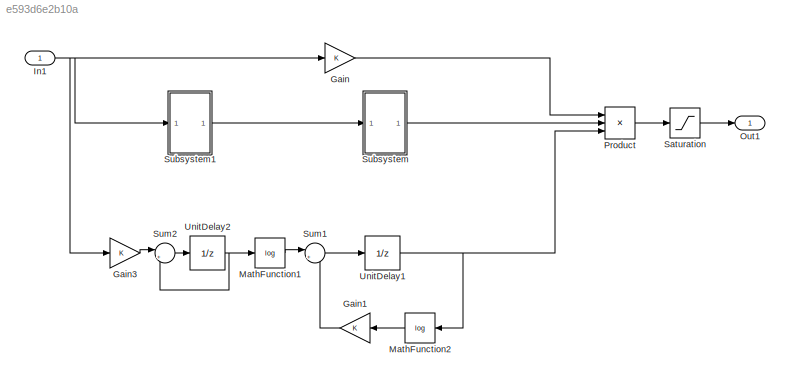
MODEL slx_e593d6e2b10a
KIND model
BLOCK [Gain] Gain
  OutDataTypeStr = Inherit: Inherit via internal rule
  ParamDataTypeStr = Inherit: Inherit via internal rule
  SaturateOnIntegerOverflow = off
BLOCK [Gain] Gain1
  OutDataTypeStr = Inherit: Inherit via internal rule
  ParamDataTypeStr = Inherit: Inherit via internal rule
  SaturateOnIntegerOverflow = off
BLOCK [Gain] Gain3
  OutDataTypeStr = Inherit: Inherit via internal rule
  ParamDataTypeStr = Inherit: Inherit via internal rule
  SaturateOnIntegerOverflow = off
BLOCK [Inport] In1
  IconDisplay = Port number
BLOCK [Math] MathFunction1
  Operator = log
  Ports = [1, 1]
BLOCK [Math] MathFunction2
  Operator = log
  Ports = [1, 1]
BLOCK [Outport] Out1
  IconDisplay = Port number
BLOCK [Product] Product
  InputSameDT = off
  Inputs = 3
  OutDataTypeStr = Inherit: Inherit via internal rule
  Ports = [3, 1]
  RndMeth = Floor
  SaturateOnIntegerOverflow = off
BLOCK [Saturate] Saturation
  InputPortMap = u0
  Ports = [1, 1]
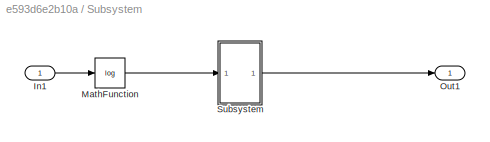
BLOCK [SubSystem] Subsystem
  Ports = [1, 1]
  RequestExecContextInheritance = off
BLOCK [Inport] Subsystem/In1
  IconDisplay = Port number
BLOCK [Math] Subsystem/MathFunction
  Operator = log
  Ports = [1, 1]
BLOCK [Outport] Subsystem/Out1
  IconDisplay = Port number
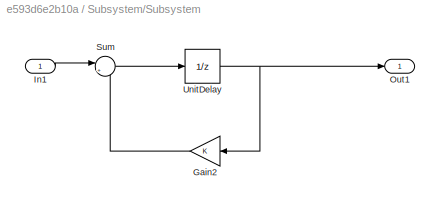
BLOCK [SubSystem] Subsystem/Subsystem
  Ports = [1, 1]
  RequestExecContextInheritance = off
BLOCK [Gain] Subsystem/Subsystem/Gain2
  OutDataTypeStr = Inherit: Inherit via internal rule
  ParamDataTypeStr = Inherit: Inherit via internal rule
  SaturateOnIntegerOverflow = off
BLOCK [Inport] Subsystem/Subsystem/In1
  IconDisplay = Port number
BLOCK [Outport] Subsystem/Subsystem/Out1
  IconDisplay = Port number
BLOCK [Sum] Subsystem/Subsystem/Sum
  IconShape = round
  InputSameDT = off
  Inputs = |++
  OutDataTypeStr = Inherit: Inherit via internal rule
  Ports = [2, 1]
  SaturateOnIntegerOverflow = off
BLOCK [UnitDelay] Subsystem/Subsystem/UnitDelay
  InputProcessing = Elements as channels (sample based)
  SampleTime = -1
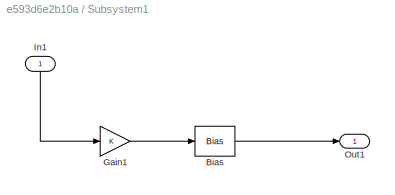
BLOCK [SubSystem] Subsystem1
  Ports = [1, 1]
  RequestExecContextInheritance = off
BLOCK [Bias] Subsystem1/Bias
  Bias = 128
  SaturateOnIntegerOverflow = off
BLOCK [Gain] Subsystem1/Gain1
  OutDataTypeStr = Inherit: Inherit via internal rule
  ParamDataTypeStr = Inherit: Inherit via internal rule
  SaturateOnIntegerOverflow = off
BLOCK [Inport] Subsystem1/In1
  IconDisplay = Port number
BLOCK [Outport] Subsystem1/Out1
  IconDisplay = Port number
BLOCK [Sum] Sum1
  IconShape = round
  InputSameDT = off
  Inputs = |++
  OutDataTypeStr = Inherit: Inherit via internal rule
  Ports = [2, 1]
  SaturateOnIntegerOverflow = off
BLOCK [Sum] Sum2
  IconShape = round
  InputSameDT = off
  Inputs = |++
  OutDataTypeStr = Inherit: Inherit via internal rule
  Ports = [2, 1]
  SaturateOnIntegerOverflow = off
BLOCK [UnitDelay] UnitDelay1
  InputProcessing = Elements as channels (sample based)
  SampleTime = -1
BLOCK [UnitDelay] UnitDelay2
  InputProcessing = Elements as channels (sample based)
  SampleTime = -1
LINE Gain1:1 -> Sum1:2
LINE Gain3:1 -> Sum2:1
LINE Gain:1 -> Product:1
NET In1:1 -> Gain3:1, Gain:1, Subsystem1:1
LINE MathFunction1:1 -> Sum1:1
LINE MathFunction2:1 -> Gain1:1
LINE Product:1 -> Saturation:1
LINE Saturation:1 -> Out1:1
LINE Subsystem/In1:1 -> Subsystem/MathFunction:1
LINE Subsystem/MathFunction:1 -> Subsystem/Subsystem:1
LINE Subsystem/Subsystem/Gain2:1 -> Subsystem/Subsystem/Sum:2
LINE Subsystem/Subsystem/In1:1 -> Subsystem/Subsystem/Sum:1
LINE Subsystem/Subsystem/Sum:1 -> Subsystem/Subsystem/UnitDelay:1
NET Subsystem/Subsystem/UnitDelay:1 -> Subsystem/Subsystem/Gain2:1, Subsystem/Subsystem/Out1:1
LINE Subsystem/Subsystem:1 -> Subsystem/Out1:1
LINE Subsystem1/Bias:1 -> Subsystem1/Out1:1
LINE Subsystem1/Gain1:1 -> Subsystem1/Bias:1
LINE Subsystem1/In1:1 -> Subsystem1/Gain1:1
LINE Subsystem1:1 -> Subsystem:1
LINE Subsystem:1 -> Product:2
LINE Sum1:1 -> UnitDelay1:1
LINE Sum2:1 -> UnitDelay2:1
NET UnitDelay1:1 -> MathFunction2:1, Product:3
NET UnitDelay2:1 -> MathFunction1:1, Sum2:2
note: NET lines group one-source signal fan-out (src -> all destinations, sorted); 1:1 wires keep LINE
